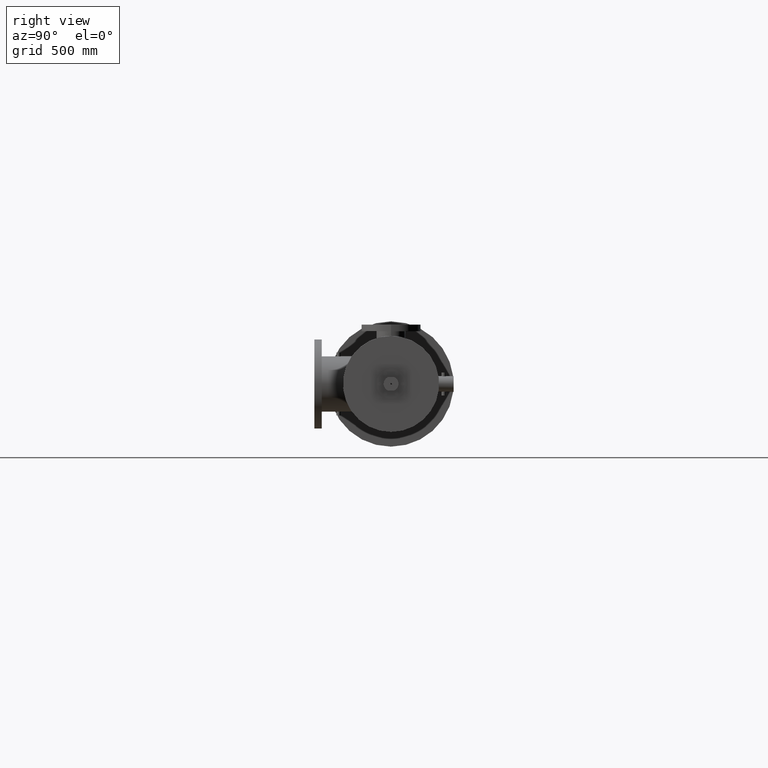
[diagram: clean part render]
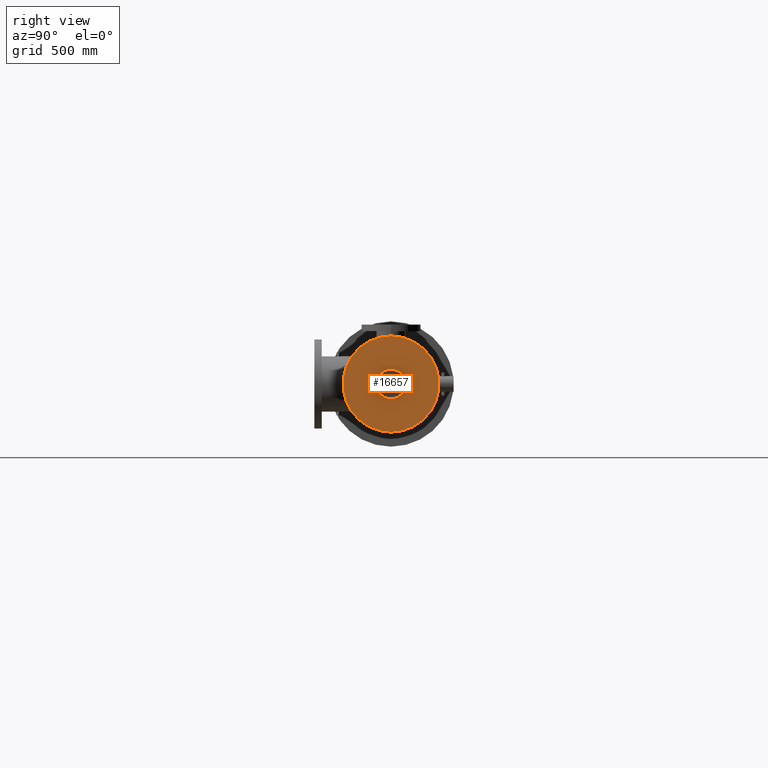
[diagram: same view with one face highlighted and labeled with its STEP entity id]
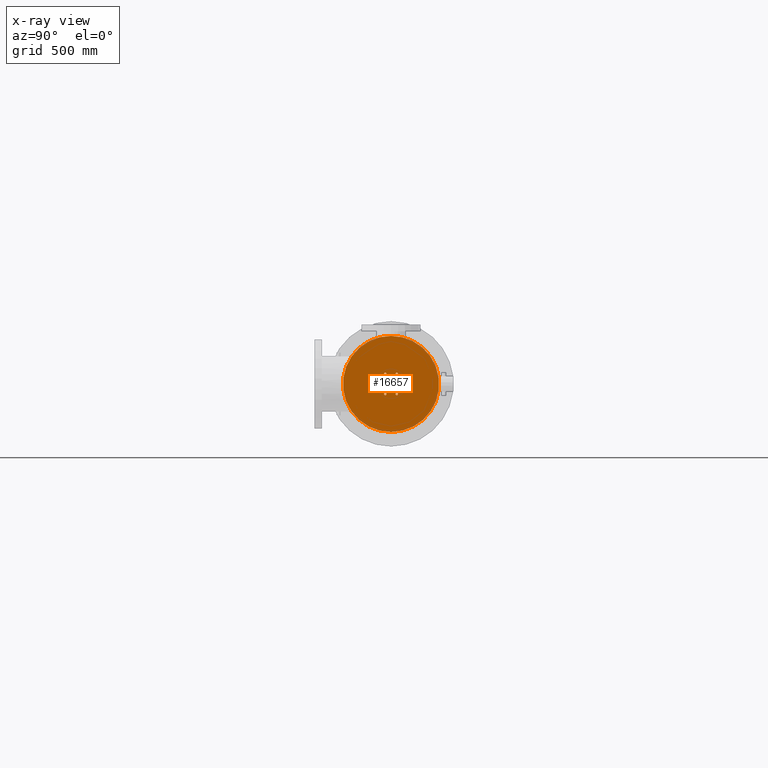
[diagram: x-ray of the same camera — body ghosted, the highlighted face saturated]
A machine part, right view. The second image highlights one B-rep face of the part: STEP entity #16657.
The next image is the same camera in x-ray: the body ghosted, the highlighted face saturated — about 1% of this face is hidden behind the body in this view.
In plain terms, the highlighted planar face has unit normal (1, 0, 0).
Its self-contained STEP definition (entity closure, byte-faithful):
#128 = EDGE_CURVE ( 'NONE', #22490, #15927, #16858, .T. ) ;
#163 = CARTESIAN_POINT ( 'NONE',  ( 783.2751215751100062, 184.1613553879231517, 0.0000000000000000000 ) ) ;
#173 = CARTESIAN_POINT ( 'NONE',  ( 783.2751215751100062, 185.0363553860931916, -1.515544456622812897 ) ) ;
#251 = PLANE ( 'NONE',  #23012 ) ;
#770 = CARTESIAN_POINT ( 'NONE',  ( 783.2751215751100062, 185.9113553860931916, -0.1875000000000332512 ) ) ;
#1167 = CARTESIAN_POINT ( 'NONE',  ( 783.2751215751100062, 185.0363553860931631, 1.515544456622725633 ) ) ;
#1895 = CARTESIAN_POINT ( 'NONE',  ( 783.2751215751100062, 184.1613553879231517, 0.0000000000000000000 ) ) ;
#2228 = CARTESIAN_POINT ( 'NONE',  ( 783.2751215751100062, 0.0000000000000000000, 0.0000000000000000000 ) ) ;
#2271 = FACE_BOUND ( 'NONE', #23047, .T. ) ;
#2341 = EDGE_CURVE ( 'NONE', #20109, #10256, #3160, .T. ) ;
#2592 = EDGE_CURVE ( 'NONE', #23807, #8938, #11149, .T. ) ;
#2757 = AXIS2_PLACEMENT_3D ( 'NONE', #20306, #12447, #18050 ) ;
#2843 = CARTESIAN_POINT ( 'NONE',  ( 783.2751215751100062, 183.2863553860931631, -1.515544456622830438 ) ) ;
#3034 = ORIENTED_EDGE ( 'NONE', *, *, #25506, .F. ) ;
#3160 = CIRCLE ( 'NONE', #2757, 0.1875000000000088540 ) ;
#3287 = CARTESIAN_POINT ( 'NONE',  ( 783.2751215751100062, 185.9113553860931916, -1.222018468595105352E-14 ) ) ;
#3666 = CARTESIAN_POINT ( 'NONE',  ( 783.2751215751100062, 183.2863553860931347, 1.703044456622716973 ) ) ;
#3685 = AXIS2_PLACEMENT_3D ( 'NONE', #10679, #12611, #4992 ) ;
#3819 = CARTESIAN_POINT ( 'NONE',  ( 783.2751215751100062, 184.9145049923924091, 9.223422546334033737E-17 ) ) ;
#3899 = ORIENTED_EDGE ( 'NONE', *, *, #10282, .F. ) ;
#3959 = ORIENTED_EDGE ( 'NONE', *, *, #8799, .F. ) ;
#4187 = DIRECTION ( 'NONE',  ( 0.0000000000000000000, 0.0000000000000000000, -1.000000000000000000 ) ) ;
#4197 = AXIS2_PLACEMENT_3D ( 'NONE', #20062, #8239, #22064 ) ;
#4579 = CARTESIAN_POINT ( 'NONE',  ( 783.2751215751100062, 184.1613553860931631, 0.0000000000000000000 ) ) ;
#4599 = EDGE_LOOP ( 'NONE', ( #16110, #3034 ) ) ;
#4665 = EDGE_CURVE ( 'NONE', #10256, #20109, #25523, .T. ) ;
#4892 = EDGE_LOOP ( 'NONE', ( #12373, #5867 ) ) ;
#4992 = DIRECTION ( 'NONE',  ( 0.0000000000000000000, 0.0000000000000000000, -1.000000000000000000 ) ) ;
#5085 = DIRECTION ( 'NONE',  ( 0.0000000000000000000, 0.0000000000000000000, -1.000000000000000000 ) ) ;
#5200 = CARTESIAN_POINT ( 'NONE',  ( 783.2751215751100062, 184.1613553879231517, 7.290535370281114425 ) ) ;
#5525 = EDGE_CURVE ( 'NONE', #23922, #6692, #19361, .T. ) ;
#5588 = CARTESIAN_POINT ( 'NONE',  ( 783.2751215751100062, 184.1613553860931631, 0.0000000000000000000 ) ) ;
#5642 = FACE_BOUND ( 'NONE', #4599, .T. ) ;
#5706 = AXIS2_PLACEMENT_3D ( 'NONE', #1167, #16932, #5085 ) ;
#5867 = ORIENTED_EDGE ( 'NONE', *, *, #9502, .F. ) ;
#5955 = CIRCLE ( 'NONE', #11757, 0.1875000000000019706 ) ;
#6052 = DIRECTION ( 'NONE',  ( 1.000000000000000000, 0.0000000000000000000, 0.0000000000000000000 ) ) ;
#6097 = DIRECTION ( 'NONE',  ( 0.0000000000000000000, 0.0000000000000000000, -1.000000000000000000 ) ) ;
#6274 = VERTEX_POINT ( 'NONE', #11622 ) ;
#6314 = AXIS2_PLACEMENT_3D ( 'NONE', #3287, #12948, #23028 ) ;
#6673 = DIRECTION ( 'NONE',  ( 0.0000000000000000000, 0.0000000000000000000, -1.000000000000000000 ) ) ;
#6692 = VERTEX_POINT ( 'NONE', #16893 ) ;
#6829 = CARTESIAN_POINT ( 'NONE',  ( 783.2751215751100062, 185.0363553860931916, -1.703044456622802238 ) ) ;
#7028 = AXIS2_PLACEMENT_3D ( 'NONE', #4579, #8646, #8561 ) ;
#7914 = DIRECTION ( 'NONE',  ( -1.000000000000000000, -0.0000000000000000000, -0.0000000000000000000 ) ) ;
#8057 = CIRCLE ( 'NONE', #3685, 0.1875000000000184297 ) ;
#8239 = DIRECTION ( 'NONE',  ( 1.000000000000000000, 0.0000000000000000000, 0.0000000000000000000 ) ) ;
#8248 = AXIS2_PLACEMENT_3D ( 'NONE', #2843, #14991, #20779 ) ;
#8504 = ORIENTED_EDGE ( 'NONE', *, *, #12116, .F. ) ;
#8561 = DIRECTION ( 'NONE',  ( 0.0000000000000000000, 0.0000000000000000000, -1.000000000000000000 ) ) ;
#8646 = DIRECTION ( 'NONE',  ( -1.000000000000000000, -0.0000000000000000000, -0.0000000000000000000 ) ) ;
#8799 = EDGE_CURVE ( 'NONE', #16716, #6274, #5955, .T. ) ;
#8894 = VERTEX_POINT ( 'NONE', #18900 ) ;
#8938 = VERTEX_POINT ( 'NONE', #11185 ) ;
#9036 = FACE_BOUND ( 'NONE', #20924, .T. ) ;
#9324 = ORIENTED_EDGE ( 'NONE', *, *, #11600, .F. ) ;
#9502 = EDGE_CURVE ( 'NONE', #6692, #23922, #8057, .T. ) ;
#9574 = EDGE_CURVE ( 'NONE', #23528, #11519, #20100, .T. ) ;
#9702 = ORIENTED_EDGE ( 'NONE', *, *, #12961, .F. ) ;
#9757 = EDGE_CURVE ( 'NONE', #11512, #8894, #18577, .T. ) ;
#10049 = DIRECTION ( 'NONE',  ( 1.000000000000000000, 0.0000000000000000000, 0.0000000000000000000 ) ) ;
#10255 = CARTESIAN_POINT ( 'NONE',  ( 783.2751215751100062, 183.2863553860931347, 1.515544456622708092 ) ) ;
#10256 = VERTEX_POINT ( 'NONE', #3666 ) ;
#10282 = EDGE_CURVE ( 'NONE', #6274, #16716, #18220, .T. ) ;
#10498 = CARTESIAN_POINT ( 'NONE',  ( 783.2751215751100062, 182.4113553860931063, -6.993530863780513839E-14 ) ) ;
#10561 = AXIS2_PLACEMENT_3D ( 'NONE', #11870, #17918, #6097 ) ;
#10587 = DIRECTION ( 'NONE',  ( 0.0000000000000000000, 0.0000000000000000000, -1.000000000000000000 ) ) ;
#10679 = CARTESIAN_POINT ( 'NONE',  ( 783.2751215751100062, 183.2863553860931631, -1.515544456622830438 ) ) ;
#10881 = FACE_BOUND ( 'NONE', #21288, .T. ) ;
#11097 = CARTESIAN_POINT ( 'NONE',  ( 783.2751215751100062, 185.0363553860931631, 1.515544456622725633 ) ) ;
#11149 = CIRCLE ( 'NONE', #5706, 0.1875000000000184297 ) ;
#11185 = CARTESIAN_POINT ( 'NONE',  ( 783.2751215751100062, 185.0363553860931631, 1.703044456622744063 ) ) ;
#11203 = FACE_OUTER_BOUND ( 'NONE', #20866, .T. ) ;
#11512 = VERTEX_POINT ( 'NONE', #5200 ) ;
#11519 = VERTEX_POINT ( 'NONE', #16953 ) ;
#11600 = EDGE_CURVE ( 'NONE', #14667, #16257, #12864, .T. ) ;
#11622 = CARTESIAN_POINT ( 'NONE',  ( 783.2751215751100062, 182.4113553860931063, -0.1875000000000718869 ) ) ;
#11625 = DIRECTION ( 'NONE',  ( -1.000000000000000000, -0.0000000000000000000, -0.0000000000000000000 ) ) ;
#11710 = CARTESIAN_POINT ( 'NONE',  ( 783.2751215751100062, 183.4082057797939456, 0.0000000000000000000 ) ) ;
#11757 = AXIS2_PLACEMENT_3D ( 'NONE', #10498, #24311, #10587 ) ;
#11870 = CARTESIAN_POINT ( 'NONE',  ( 783.2751215751100062, 185.0363553860931916, -1.515544456622812897 ) ) ;
#12116 = EDGE_CURVE ( 'NONE', #11519, #23528, #13559, .T. ) ;
#12285 = CIRCLE ( 'NONE', #12841, 7.290535370281114425 ) ;
#12303 = AXIS2_PLACEMENT_3D ( 'NONE', #17963, #6052, #19936 ) ;
#12373 = ORIENTED_EDGE ( 'NONE', *, *, #5525, .F. ) ;
#12447 = DIRECTION ( 'NONE',  ( 1.000000000000000000, 0.0000000000000000000, 0.0000000000000000000 ) ) ;
#12611 = DIRECTION ( 'NONE',  ( 1.000000000000000000, 0.0000000000000000000, 0.0000000000000000000 ) ) ;
#12841 = AXIS2_PLACEMENT_3D ( 'NONE', #1895, #7914, #19982 ) ;
#12852 = EDGE_CURVE ( 'NONE', #15927, #22490, #14785, .T. ) ;
#12864 = CIRCLE ( 'NONE', #20080, 0.1874999999999892031 ) ;
#12948 = DIRECTION ( 'NONE',  ( 1.000000000000000000, 0.0000000000000000000, 0.0000000000000000000 ) ) ;
#12961 = EDGE_CURVE ( 'NONE', #8894, #11512, #12285, .T. ) ;
#13345 = CARTESIAN_POINT ( 'NONE',  ( 783.2751215751100062, 183.2863553860931347, 1.328044456622699210 ) ) ;
#13559 = CIRCLE ( 'NONE', #4197, 0.1875000000000210110 ) ;
#13952 = DIRECTION ( 'NONE',  ( -1.000000000000000000, -0.0000000000000000000, -0.0000000000000000000 ) ) ;
#14007 = CARTESIAN_POINT ( 'NONE',  ( 783.2751215751100062, 185.0363553860931631, 1.328044456622707203 ) ) ;
#14034 = DIRECTION ( 'NONE',  ( 0.0000000000000000000, 0.0000000000000000000, 1.000000000000000000 ) ) ;
#14290 = CARTESIAN_POINT ( 'NONE',  ( 783.2751215751100062, 182.4113553860931063, 0.1874999999999320266 ) ) ;
#14597 = ORIENTED_EDGE ( 'NONE', *, *, #9757, .F. ) ;
#14667 = VERTEX_POINT ( 'NONE', #23864 ) ;
#14785 = CIRCLE ( 'NONE', #20432, 0.7531496062992163454 ) ;
#14977 = ORIENTED_EDGE ( 'NONE', *, *, #9574, .F. ) ;
#14991 = DIRECTION ( 'NONE',  ( 1.000000000000000000, 0.0000000000000000000, 0.0000000000000000000 ) ) ;
#15077 = ORIENTED_EDGE ( 'NONE', *, *, #4665, .F. ) ;
#15116 = EDGE_LOOP ( 'NONE', ( #22033, #9324 ) ) ;
#15691 = DIRECTION ( 'NONE',  ( 0.0000000000000000000, 0.0000000000000000000, -1.000000000000000000 ) ) ;
#15721 = AXIS2_PLACEMENT_3D ( 'NONE', #11097, #23443, #15691 ) ;
#15927 = VERTEX_POINT ( 'NONE', #3819 ) ;
#16109 = DIRECTION ( 'NONE',  ( 1.000000000000000000, 0.0000000000000000000, 0.0000000000000000000 ) ) ;
#16110 = ORIENTED_EDGE ( 'NONE', *, *, #2592, .F. ) ;
#16153 = FACE_BOUND ( 'NONE', #15116, .T. ) ;
#16257 = VERTEX_POINT ( 'NONE', #6829 ) ;
#16657 = ADVANCED_FACE ( 'NONE', ( #2271, #23238, #16153, #22652, #9036, #10881, #5642, #11203 ), #251, .T. ) ;
#16716 = VERTEX_POINT ( 'NONE', #14290 ) ;
#16858 = CIRCLE ( 'NONE', #7028, 0.7531496062992163454 ) ;
#16893 = CARTESIAN_POINT ( 'NONE',  ( 783.2751215751100062, 183.2863553860931631, -1.328044456622812008 ) ) ;
#16932 = DIRECTION ( 'NONE',  ( 1.000000000000000000, 0.0000000000000000000, 0.0000000000000000000 ) ) ;
#16953 = CARTESIAN_POINT ( 'NONE',  ( 783.2751215751100062, 185.9113553860931916, 0.1875000000000087985 ) ) ;
#17368 = ORIENTED_EDGE ( 'NONE', *, *, #128, .T. ) ;
#17377 = CIRCLE ( 'NONE', #15721, 0.1875000000000184297 ) ;
#17583 = DIRECTION ( 'NONE',  ( 0.0000000000000000000, 0.0000000000000000000, -1.000000000000000000 ) ) ;
#17918 = DIRECTION ( 'NONE',  ( 1.000000000000000000, 0.0000000000000000000, 0.0000000000000000000 ) ) ;
#17963 = CARTESIAN_POINT ( 'NONE',  ( 783.2751215751100062, 182.4113553860931063, -6.993530863780513839E-14 ) ) ;
#18050 = DIRECTION ( 'NONE',  ( 0.0000000000000000000, 0.0000000000000000000, -1.000000000000000000 ) ) ;
#18085 = ORIENTED_EDGE ( 'NONE', *, *, #2341, .F. ) ;
#18116 = CIRCLE ( 'NONE', #10561, 0.1874999999999892031 ) ;
#18220 = CIRCLE ( 'NONE', #12303, 0.1875000000000019706 ) ;
#18352 = EDGE_LOOP ( 'NONE', ( #14977, #8504 ) ) ;
#18491 = DIRECTION ( 'NONE',  ( 1.000000000000000000, 0.0000000000000000000, 0.0000000000000000000 ) ) ;
#18577 = CIRCLE ( 'NONE', #19541, 7.290535370281114425 ) ;
#18591 = CARTESIAN_POINT ( 'NONE',  ( 783.2751215751100062, 183.2863553860931631, -1.703044456622848868 ) ) ;
#18900 = CARTESIAN_POINT ( 'NONE',  ( 783.2751215751100062, 184.1613553879231517, -7.290535370281114425 ) ) ;
#19361 = CIRCLE ( 'NONE', #8248, 0.1875000000000184297 ) ;
#19541 = AXIS2_PLACEMENT_3D ( 'NONE', #163, #13952, #14034 ) ;
#19936 = DIRECTION ( 'NONE',  ( 0.0000000000000000000, 0.0000000000000000000, -1.000000000000000000 ) ) ;
#19982 = DIRECTION ( 'NONE',  ( 0.0000000000000000000, 0.0000000000000000000, 1.000000000000000000 ) ) ;
#20062 = CARTESIAN_POINT ( 'NONE',  ( 783.2751215751100062, 185.9113553860931916, -1.222018468595105352E-14 ) ) ;
#20080 = AXIS2_PLACEMENT_3D ( 'NONE', #173, #10049, #17583 ) ;
#20100 = CIRCLE ( 'NONE', #6314, 0.1875000000000210110 ) ;
#20109 = VERTEX_POINT ( 'NONE', #13345 ) ;
#20306 = CARTESIAN_POINT ( 'NONE',  ( 783.2751215751100062, 183.2863553860931347, 1.515544456622708092 ) ) ;
#20432 = AXIS2_PLACEMENT_3D ( 'NONE', #5588, #11625, #23354 ) ;
#20779 = DIRECTION ( 'NONE',  ( 0.0000000000000000000, 0.0000000000000000000, -1.000000000000000000 ) ) ;
#20866 = EDGE_LOOP ( 'NONE', ( #14597, #9702 ) ) ;
#20924 = EDGE_LOOP ( 'NONE', ( #3899, #3959 ) ) ;
#21288 = EDGE_LOOP ( 'NONE', ( #18085, #15077 ) ) ;
#22033 = ORIENTED_EDGE ( 'NONE', *, *, #24508, .F. ) ;
#22064 = DIRECTION ( 'NONE',  ( 0.0000000000000000000, 0.0000000000000000000, -1.000000000000000000 ) ) ;
#22490 = VERTEX_POINT ( 'NONE', #11710 ) ;
#22652 = FACE_BOUND ( 'NONE', #4892, .T. ) ;
#22774 = AXIS2_PLACEMENT_3D ( 'NONE', #10255, #18491, #6673 ) ;
#23012 = AXIS2_PLACEMENT_3D ( 'NONE', #2228, #16109, #4187 ) ;
#23028 = DIRECTION ( 'NONE',  ( 0.0000000000000000000, 0.0000000000000000000, -1.000000000000000000 ) ) ;
#23047 = EDGE_LOOP ( 'NONE', ( #17368, #24231 ) ) ;
#23238 = FACE_BOUND ( 'NONE', #18352, .T. ) ;
#23354 = DIRECTION ( 'NONE',  ( 0.0000000000000000000, 0.0000000000000000000, -1.000000000000000000 ) ) ;
#23443 = DIRECTION ( 'NONE',  ( 1.000000000000000000, 0.0000000000000000000, 0.0000000000000000000 ) ) ;
#23528 = VERTEX_POINT ( 'NONE', #770 ) ;
#23807 = VERTEX_POINT ( 'NONE', #14007 ) ;
#23864 = CARTESIAN_POINT ( 'NONE',  ( 783.2751215751100062, 185.0363553860931916, -1.328044456622823777 ) ) ;
#23922 = VERTEX_POINT ( 'NONE', #18591 ) ;
#24231 = ORIENTED_EDGE ( 'NONE', *, *, #12852, .T. ) ;
#24311 = DIRECTION ( 'NONE',  ( 1.000000000000000000, 0.0000000000000000000, 0.0000000000000000000 ) ) ;
#24508 = EDGE_CURVE ( 'NONE', #16257, #14667, #18116, .T. ) ;
#25506 = EDGE_CURVE ( 'NONE', #8938, #23807, #17377, .T. ) ;
#25523 = CIRCLE ( 'NONE', #22774, 0.1875000000000088540 ) ;